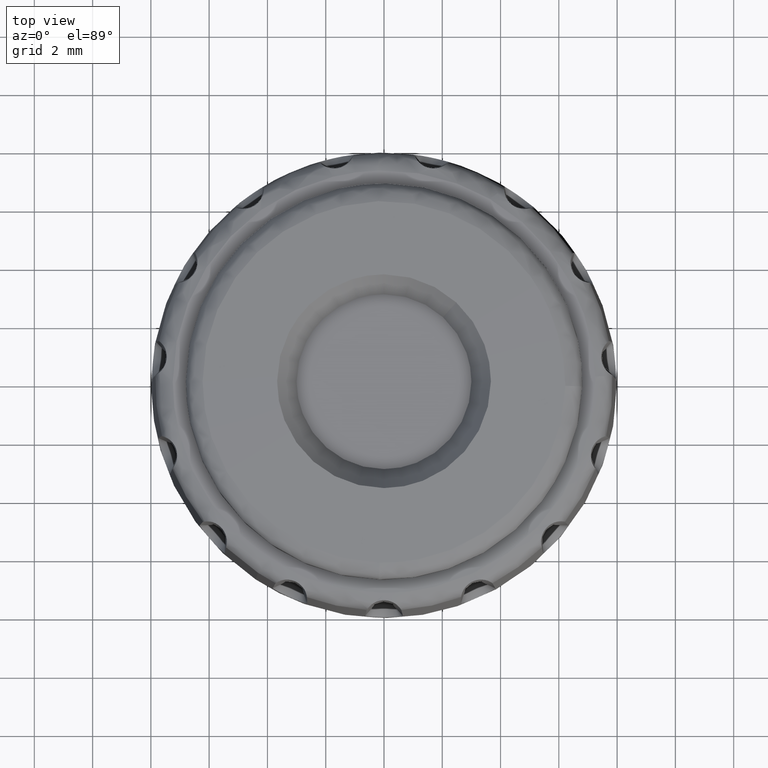
[diagram: clean part render]
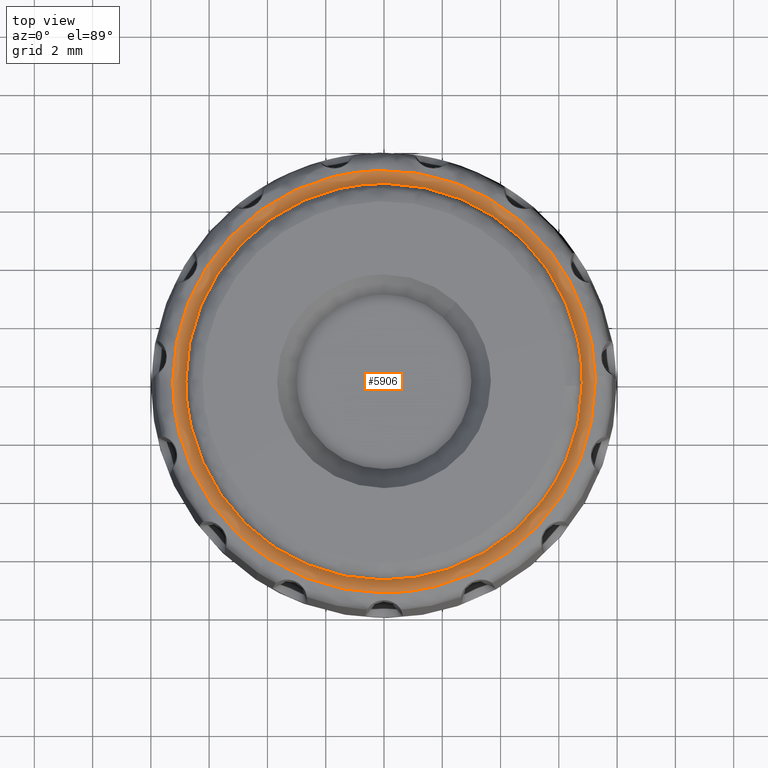
[diagram: same view with one face highlighted and labeled with its STEP entity id]
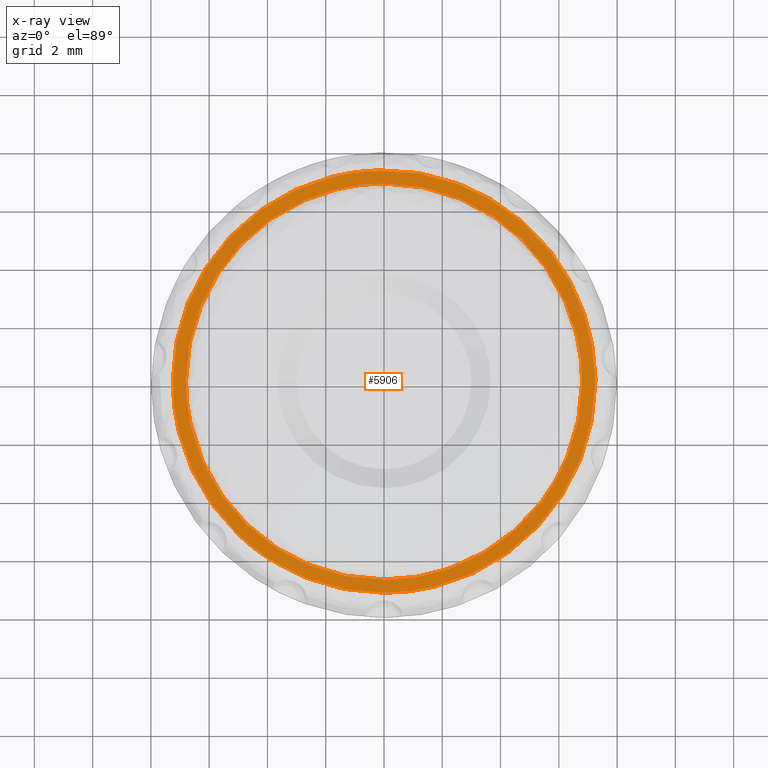
[diagram: x-ray of the same camera — body ghosted, the highlighted face saturated]
A machine part, top view. The second image highlights one B-rep face of the part: STEP entity #5906.
The next image is the same camera in x-ray: the body ghosted, the highlighted face saturated — about 0% of this face is hidden behind the body in this view.
In plain terms, the highlighted face is a freeform B-spline surface patch.
Its self-contained STEP definition (entity closure, byte-faithful):
#1542=CARTESIAN_POINT('',(5.408528519782236,-4.121626578270181,9.999999999999975));
#1543=VERTEX_POINT('',#1542);
#1544=CARTESIAN_POINT('',(0.0,-6.799999000000001,10.0));
#1545=VERTEX_POINT('',#1544);
#1546=CARTESIAN_POINT('',(5.408528519782236,-4.121626578270181,9.999999999999975));
#1547=CARTESIAN_POINT('',(5.191394152069469,-4.406600639848241,10.0));
#1548=CARTESIAN_POINT('',(4.799091260927516,-4.844717917109541,9.999999999999966));
#1549=CARTESIAN_POINT('',(4.107382140978954,-5.440801214764647,10.000000000000011));
#1550=CARTESIAN_POINT('',(3.347207764043351,-5.948837912936199,9.999999999999941));
#1551=CARTESIAN_POINT('',(2.400521007442862,-6.392517585190369,10.000000000000050));
#1552=CARTESIAN_POINT('',(1.270207693761692,-6.717783088369838,9.999999999999981));
#1553=CARTESIAN_POINT('',(0.455981786439983,-6.800060579972691,10.0));
#1554=CARTESIAN_POINT('',(0.0,-6.799999000000001,10.0));
#1555=B_SPLINE_CURVE_WITH_KNOTS('',3,(#1546,#1547,#1548,#1549,#1550,#1551,#1552,#1553,#1554),.UNSPECIFIED.,.F.,.U.,(4,1,1,1,1,1,4),(5.031966E-010,1.074807785380642,1.758779342067925,2.735879121498199,3.810685510656772,4.885497012482798,6.253435341333002),.UNSPECIFIED.);
#1556=EDGE_CURVE('',#1543,#1545,#1555,.T.);
#1614=CARTESIAN_POINT('',(-4.896453895723523,4.718551223315789,9.999999999999311));
#1615=VERTEX_POINT('',#1614);
#1621=CARTESIAN_POINT('',(-6.799999000000001,0.0,10.0));
#1622=VERTEX_POINT('',#1621);
#1623=CARTESIAN_POINT('',(-6.799999000000001,0.0,10.0));
#1624=CARTESIAN_POINT('',(-6.800027843671009,0.366674919784092,9.999999999999938));
#1625=CARTESIAN_POINT('',(-6.753743985027811,0.937044930050643,9.999999999999874));
#1626=CARTESIAN_POINT('',(-6.566821182870814,1.828469767579856,9.999999999999716));
#1627=CARTESIAN_POINT('',(-6.295999049394270,2.628211422897576,9.999999999999675));
#1628=CARTESIAN_POINT('',(-5.921968999995835,3.369393497246997,9.999999999999480));
#1629=CARTESIAN_POINT('',(-5.470931746341084,4.065122809471920,9.999999999999428));
#1630=CARTESIAN_POINT('',(-5.132058925873352,4.474093812627084,9.999999999999339));
#1631=CARTESIAN_POINT('',(-4.896453895723523,4.718551223315789,9.999999999999311));
#1632=B_SPLINE_CURVE_WITH_KNOTS('',3,(#1623,#1624,#1625,#1626,#1627,#1628,#1629,#1630,#1631),.UNSPECIFIED.,.F.,.U.,(4,1,1,1,1,1,4),(1.898949E-009,1.100019764477620,1.711143771647405,2.729676220179082,3.625992139615347,4.196374606216313,5.214911163169569),.UNSPECIFIED.);
#1633=EDGE_CURVE('',#1622,#1615,#1632,.T.);
#1635=CARTESIAN_POINT('',(0.0,-6.799999000000001,10.0));
#1636=CARTESIAN_POINT('',(-0.208618888932995,-6.799998457981279,9.999999999999993));
#1637=CARTESIAN_POINT('',(-0.764944718493808,-6.774395344932870,10.000000000000011));
#1638=CARTESIAN_POINT('',(-1.521242070272086,-6.645556763004307,9.999999999999970));
#1639=CARTESIAN_POINT('',(-2.401401887871068,-6.381505290715326,10.000000000000060));
#1640=CARTESIAN_POINT('',(-3.179479924337993,-6.036611995753584,9.999999999999936));
#1641=CARTESIAN_POINT('',(-4.054015885141657,-5.490311899850100,9.999999999999965));
#1642=CARTESIAN_POINT('',(-4.829719363281610,-4.829462317867765,10.000000000000041));
#1643=CARTESIAN_POINT('',(-5.469663976551860,-4.073598465305128,9.999999999999966));
#1644=CARTESIAN_POINT('',(-5.891005894762039,-3.417139282598224,10.000000000000041));
#1645=CARTESIAN_POINT('',(-6.196882432641729,-2.823148287383583,9.999999999999776));
#1646=CARTESIAN_POINT('',(-6.431378806003726,-2.241954514138603,10.000000000000110));
#1647=CARTESIAN_POINT('',(-6.631238614010163,-1.560595040486762,9.999999999999947));
#1648=CARTESIAN_POINT('',(-6.766673034388317,-0.820573122906618,10.000000000000020));
#1649=CARTESIAN_POINT('',(-6.800006431066225,-0.278160188053825,9.999999999999993));
#1650=CARTESIAN_POINT('',(-6.799999000000001,0.0,10.0));
#1651=B_SPLINE_CURVE_WITH_KNOTS('',3,(#1635,#1636,#1637,#1638,#1639,#1640,#1641,#1642,#1643,#1644,#1645,#1646,#1647,#1648,#1649,#1650),.UNSPECIFIED.,.F.,.U.,(4,1,1,1,1,1,1,1,1,1,1,1,1,4),(5.906408E-009,0.625859113942498,1.668970813268054,2.294837567800945,3.379671753072743,4.214160441787874,5.382435624219519,6.425544507455987,7.176583586202654,7.719001755844993,8.428317434799538,9.054184286367267,9.846949161622868,10.681430207446260),.UNSPECIFIED.);
#1652=EDGE_CURVE('',#1545,#1622,#1651,.T.);
#1675=CARTESIAN_POINT('',(6.799999000000001,0.0,10.0));
#1676=VERTEX_POINT('',#1675);
#1677=CARTESIAN_POINT('',(6.799999000000001,0.0,10.0));
#1678=CARTESIAN_POINT('',(6.800004230439056,-0.288279976658944,10.0));
#1679=CARTESIAN_POINT('',(6.758158740773751,-0.945563018841939,10.000000000000011));
#1680=CARTESIAN_POINT('',(6.568903112478424,-1.839737565057945,9.999999999999968));
#1681=CARTESIAN_POINT('',(6.255595982703328,-2.708944042114950,9.999999999999968));
#1682=CARTESIAN_POINT('',(5.885439892142655,-3.441212454023802,10.000000000000030));
#1683=CARTESIAN_POINT('',(5.569287289294841,-3.910682880211174,9.999999999999936));
#1684=CARTESIAN_POINT('',(5.408528519782236,-4.121626578270181,9.999999999999975));
#1685=B_SPLINE_CURVE_WITH_KNOTS('',3,(#1677,#1678,#1679,#1680,#1681,#1682,#1683,#1684),.UNSPECIFIED.,.F.,.U.,(4,1,1,1,1,4),(1.669694E-009,0.864842253420774,1.971842799012761,2.732902083904587,3.632341341373329,4.427996334195600),.UNSPECIFIED.);
#1686=EDGE_CURVE('',#1676,#1543,#1685,.T.);
#1688=CARTESIAN_POINT('',(0.0,6.799999000000001,10.0));
#1689=VERTEX_POINT('',#1688);
#1690=CARTESIAN_POINT('',(0.0,6.799999000000001,10.0));
#1691=CARTESIAN_POINT('',(0.361611806379509,6.800026728274434,9.999999999999977));
#1692=CARTESIAN_POINT('',(0.959649348213776,6.752172765310553,10.000000000000030));
#1693=CARTESIAN_POINT('',(1.871934471881222,6.556124549244331,9.999999999999952));
#1694=CARTESIAN_POINT('',(2.674645604036409,6.274457300479724,10.000000000000149));
#1695=CARTESIAN_POINT('',(3.468742457353139,5.868607875179951,9.999999999999778));
#1696=CARTESIAN_POINT('',(4.103341227713555,5.438917722025872,10.000000000000250));
#1697=CARTESIAN_POINT('',(4.677132636875631,4.953104350139104,9.999999999999659));
#1698=CARTESIAN_POINT('',(5.130086170467482,4.480259747781740,10.000000000000030));
#1699=CARTESIAN_POINT('',(5.559939086443254,3.932920295681527,10.000000000000080));
#1700=CARTESIAN_POINT('',(5.996370001781465,3.253040355066616,10.000000000000130));
#1701=CARTESIAN_POINT('',(6.388359842649924,2.404128383169410,9.999999999999963));
#1702=CARTESIAN_POINT('',(6.636815894572605,1.547271076273085,10.000000000000030));
#1703=CARTESIAN_POINT('',(6.770086322324401,0.764939960136304,10.000000000000011));
#1704=CARTESIAN_POINT('',(6.800007522178547,0.278160297153615,9.999999999999996));
#1705=CARTESIAN_POINT('',(6.799999000000001,0.0,10.0));
#1706=B_SPLINE_CURVE_WITH_KNOTS('',3,(#1690,#1691,#1692,#1693,#1694,#1695,#1696,#1697,#1698,#1699,#1700,#1701,#1702,#1703,#1704,#1705),.UNSPECIFIED.,.F.,.U.,(4,1,1,1,1,1,1,1,1,1,1,1,1,4),(5.904127E-009,1.084831325827979,1.794144399425338,2.795531052823528,3.630018287854757,4.464505047826655,5.090374036826306,5.883127610205257,6.425544507455590,7.176583586202448,8.303143432670098,9.221081452806370,9.846949161622874,10.681430207446260),.UNSPECIFIED.);
#1707=EDGE_CURVE('',#1689,#1676,#1706,.T.);
#1709=CARTESIAN_POINT('',(-4.896453895723523,4.718551223315789,9.999999999999311));
#1710=CARTESIAN_POINT('',(-4.580390488678766,5.046617302975597,9.999999999999352));
#1711=CARTESIAN_POINT('',(-3.991102408665842,5.546282865874094,9.999999999999428));
#1712=CARTESIAN_POINT('',(-3.082058949107592,6.083585599091468,9.999999999999599));
#1713=CARTESIAN_POINT('',(-2.320692116641721,6.407228623081519,9.999999999999625));
#1714=CARTESIAN_POINT('',(-1.541902424202456,6.638701302637523,9.999999999999826));
#1715=CARTESIAN_POINT('',(-0.782964199950261,6.771099446613853,9.999999999999840));
#1716=CARTESIAN_POINT('',(-0.242006078123439,6.800001919436407,10.000000000000011));
#1717=CARTESIAN_POINT('',(0.0,6.799999000000001,10.0));
#1718=B_SPLINE_CURVE_WITH_KNOTS('',3,(#1709,#1710,#1711,#1712,#1713,#1714,#1715,#1716,#1717),.UNSPECIFIED.,.F.,.U.,(4,1,1,1,1,1,4),(1.912579E-009,1.366629769475720,2.306190684347369,3.160328389730370,3.843645440179791,4.740498999005044,5.466519072165273),.UNSPECIFIED.);
#1719=EDGE_CURVE('',#1615,#1689,#1718,.T.);
#3828=CARTESIAN_POINT('',(-0.182171356558874,7.246841755596723,9.999993999997795));
#3829=VERTEX_POINT('',#3828);
#3830=CARTESIAN_POINT('',(7.246840678469663,0.182171329570759,9.999993999999788));
#3831=VERTEX_POINT('',#3830);
#3832=CARTESIAN_POINT('',(-0.182171356558874,7.246841755596723,9.999993999997795));
#3833=CARTESIAN_POINT('',(0.188378583600182,7.256180020488944,9.999993999997857));
#3834=CARTESIAN_POINT('',(0.841799561863341,7.222413446355628,9.999993999997912));
#3835=CARTESIAN_POINT('',(1.877997814429047,7.026853828803988,9.999993999998138));
#3836=CARTESIAN_POINT('',(2.765410651451269,6.725183426959933,9.999993999998269));
#3837=CARTESIAN_POINT('',(3.695432654358968,6.261300976334425,9.999993999998409));
#3838=CARTESIAN_POINT('',(4.410060819695639,5.778054878730777,9.999993999998683));
#3839=CARTESIAN_POINT('',(5.034714623937862,5.229730104799012,9.999993999998775));
#3840=CARTESIAN_POINT('',(5.565522348150299,4.669444155468002,9.999993999998941));
#3841=CARTESIAN_POINT('',(6.155096111472352,3.885629202915855,9.999993999999189));
#3842=CARTESIAN_POINT('',(6.671948806082709,2.912888357903933,9.999993999999399));
#3843=CARTESIAN_POINT('',(6.998341628333837,1.956304236358145,9.999993999999488));
#3844=CARTESIAN_POINT('',(7.186401307049295,1.070528602677750,9.999993999999674));
#3845=CARTESIAN_POINT('',(7.238657162296287,0.508254771762726,9.999993999999669));
#3846=CARTESIAN_POINT('',(7.246840678469663,0.182171329570759,9.999993999999788));
#3847=B_SPLINE_CURVE_WITH_KNOTS('',3,(#3832,#3833,#3834,#3835,#3836,#3837,#3838,#3839,#3840,#3841,#3842,#3843,#3844,#3845,#3846),.UNSPECIFIED.,.F.,.U.,(4,1,1,1,1,1,1,1,1,1,1,1,4),(5.309960E-009,1.112000627429053,1.957125947492170,3.158093508767299,3.914259074909267,5.070747010444218,5.737939956046518,6.405140958916529,7.383705979024388,8.673635219804861,9.696682580834516,10.408367556582110,11.386925705064151),.UNSPECIFIED.);
#3848=EDGE_CURVE('',#3829,#3831,#3847,.T.);
#4115=CARTESIAN_POINT('',(-7.249130031415930,0.0,9.999993999999790));
#4116=VERTEX_POINT('',#4115);
#4117=CARTESIAN_POINT('',(-7.249130031415930,0.0,9.999993999999790));
#4118=CARTESIAN_POINT('',(-7.249157824204534,0.393916509792342,9.999993999999735));
#4119=CARTESIAN_POINT('',(-7.185951367522921,1.167150913651906,9.999993999999605));
#4120=CARTESIAN_POINT('',(-6.961952901771083,2.076574368813614,9.999993999999498));
#4121=CARTESIAN_POINT('',(-6.674117515168679,2.857266197954449,9.999993999999207));
#4122=CARTESIAN_POINT('',(-6.389932796279209,3.450426347224270,9.999993999999314));
#4123=CARTESIAN_POINT('',(-5.985777795039916,4.110453907914095,9.999993999998951));
#4124=CARTESIAN_POINT('',(-5.552966589527826,4.680903204576962,9.999993999998974));
#4125=CARTESIAN_POINT('',(-4.982591617255896,5.287405751000613,9.999993999998786));
#4126=CARTESIAN_POINT('',(-4.401730688845052,5.778007536274684,9.999993999998541));
#4127=CARTESIAN_POINT('',(-3.723454390235343,6.234787902963229,9.999993999998461));
#4128=CARTESIAN_POINT('',(-3.130238529745147,6.551231483221776,9.999993999998283));
#4129=CARTESIAN_POINT('',(-2.375153090779928,6.864656109800507,9.999993999998168));
#4130=CARTESIAN_POINT('',(-1.434562945868238,7.139992873661338,9.999993999997932));
#4131=CARTESIAN_POINT('',(-0.634305245401483,7.235524747334561,9.999993999997956));
#4132=CARTESIAN_POINT('',(-0.182171356558874,7.246841755596723,9.999993999997795));
#4133=B_SPLINE_CURVE_WITH_KNOTS('',3,(#4117,#4118,#4119,#4120,#4121,#4122,#4123,#4124,#4125,#4126,#4127,#4128,#4129,#4130,#4131,#4132),.UNSPECIFIED.,.F.,.U.,(4,1,1,1,1,1,1,1,1,1,1,1,1,4),(5.711868E-009,1.181746986951964,2.319728784766681,2.801183543278439,3.676555101532285,4.289314904498957,5.120919710671733,5.821202068520567,6.784111249639482,7.396872023621127,8.272244621041335,8.797468094547211,9.847912422276751,11.204734013540930),.UNSPECIFIED.);
#4134=EDGE_CURVE('',#4116,#3829,#4133,.T.);
#4704=CARTESIAN_POINT('',(7.249130031415930,0.0,9.999993999999790));
#4705=VERTEX_POINT('',#4704);
#4706=CARTESIAN_POINT('',(7.246840678469663,0.182171329570759,9.999993999999788));
#4707=CARTESIAN_POINT('',(7.249130031415930,0.0,9.999993999999790));
#4708=QUASI_UNIFORM_CURVE('',1,(#4706,#4707),.UNSPECIFIED.,.F.,.U.);
#4709=EDGE_CURVE('',#3831,#4705,#4708,.T.);
#4711=CARTESIAN_POINT('',(0.0,-7.249130031415930,9.999993999999790));
#4712=VERTEX_POINT('',#4711);
#4713=CARTESIAN_POINT('',(7.249130031415930,0.0,9.999993999999790));
#4714=CARTESIAN_POINT('',(7.249180247711667,-0.459632250313401,9.999993999999829));
#4715=CARTESIAN_POINT('',(7.184042402278967,-1.141638410557177,9.999993999999774));
#4716=CARTESIAN_POINT('',(6.958227028514886,-2.079599417203276,9.999993999999772));
#4717=CARTESIAN_POINT('',(6.675488898837070,-2.877548530166551,9.999993999999862));
#4718=CARTESIAN_POINT('',(6.278801122975992,-3.659655366125795,9.999993999999786));
#4719=CARTESIAN_POINT('',(5.814750831694097,-4.349532999388248,9.999993999999795));
#4720=CARTESIAN_POINT('',(5.283458287605479,-4.988890917806744,9.999993999999790));
#4721=CARTESIAN_POINT('',(4.668071663331951,-5.571203099656070,9.999993999999797));
#4722=CARTESIAN_POINT('',(3.853356232967927,-6.167732739099501,9.999993999999790));
#4723=CARTESIAN_POINT('',(2.988808227974964,-6.633273981631616,9.999993999999781));
#4724=CARTESIAN_POINT('',(2.094483606922929,-6.956330689885133,9.999993999999818));
#4725=CARTESIAN_POINT('',(1.126810806309044,-7.186144181304123,9.999993999999749));
#4726=CARTESIAN_POINT('',(0.444804083939576,-7.249184614335935,9.999993999999891));
#4727=CARTESIAN_POINT('',(0.0,-7.249130031415930,9.999993999999790));
#4728=B_SPLINE_CURVE_WITH_KNOTS('',3,(#4713,#4714,#4715,#4716,#4717,#4718,#4719,#4720,#4721,#4722,#4723,#4724,#4725,#4726,#4727),.UNSPECIFIED.,.F.,.U.,(4,1,1,1,1,1,1,1,1,1,1,1,4),(5.279750E-009,1.378885076742790,2.046087896918506,2.891211562201029,3.914258725462759,4.670423929520510,5.382107438464584,6.405140387249984,7.205787987257399,8.406752589596337,9.340839164578197,10.052524183403230,11.386924688558270),.UNSPECIFIED.);
#4729=EDGE_CURVE('',#4705,#4712,#4728,.T.);
#4731=CARTESIAN_POINT('',(0.0,-7.249130031415930,9.999993999999790));
#4732=CARTESIAN_POINT('',(-0.296532359310504,-7.249138264714218,9.999993999999779));
#4733=CARTESIAN_POINT('',(-0.889597277937976,-7.212689425296788,9.999993999999809));
#4734=CARTESIAN_POINT('',(-1.838842351507520,-7.035975963911839,9.999993999999784));
#4735=CARTESIAN_POINT('',(-2.685167021332863,-6.753498503374257,9.999993999999756));
#4736=CARTESIAN_POINT('',(-3.515835675990098,-6.357491135310853,9.999993999999839));
#4737=CARTESIAN_POINT('',(-4.272051760109006,-5.885109436038597,9.999993999999745));
#4738=CARTESIAN_POINT('',(-4.956194289832745,-5.313020936204347,9.999993999999774));
#4739=CARTESIAN_POINT('',(-5.527464872348614,-4.709283406335779,9.999993999999822));
#4740=CARTESIAN_POINT('',(-5.971590369252492,-4.132938065330500,9.999993999999774));
#4741=CARTESIAN_POINT('',(-6.399895389714920,-3.437846246992967,9.999993999999800));
#4742=CARTESIAN_POINT('',(-6.778579777924536,-2.630822946948414,9.999993999999777));
#4743=CARTESIAN_POINT('',(-7.045298000179718,-1.779818952982238,9.999993999999798));
#4744=CARTESIAN_POINT('',(-7.211034164154047,-0.889595625162175,9.999993999999806));
#4745=CARTESIAN_POINT('',(-7.249143781982866,-0.326186107156827,9.999993999999751));
#4746=CARTESIAN_POINT('',(-7.249130031415930,0.0,9.999993999999790));
#4747=B_SPLINE_CURVE_WITH_KNOTS('',3,(#4731,#4732,#4733,#4734,#4735,#4736,#4737,#4738,#4739,#4740,#4741,#4742,#4743,#4744,#4745,#4746),.UNSPECIFIED.,.F.,.U.,(4,1,1,1,1,1,1,1,1,1,1,1,1,4),(5.277341E-009,0.889597648306994,1.779204546398036,2.891211562200049,3.558416225958857,4.536980858333950,5.560028471172747,6.227218524680731,7.027862851719999,7.739547870545026,8.673634445526885,9.696681715226456,10.408366627435599,11.386924688558279),.UNSPECIFIED.);
#4748=EDGE_CURVE('',#4712,#4116,#4747,.T.);
#5886=CARTESIAN_POINT('',(-7.973318365652524,-7.973204066236828,9.999997000000001));
#5887=CARTESIAN_POINT('',(7.973318495277070,-7.973204066236828,9.999997000000001));
#5888=CARTESIAN_POINT('',(-7.973318365652524,7.970915920021708,9.999997000000001));
#5889=CARTESIAN_POINT('',(7.973318495277070,7.970915920021708,9.999997000000001));
#5890=B_SPLINE_SURFACE_WITH_KNOTS('',1,1,((#5886,#5888),(#5887,#5889)),.UNSPECIFIED.,.F.,.F.,.U.,(2,2),(2,2),(0.0,15.946636860929591),(0.0,15.944119986258540),.UNSPECIFIED.);
#5891=ORIENTED_EDGE('',*,*,#4748,.F.);
#5892=ORIENTED_EDGE('',*,*,#4729,.F.);
#5893=ORIENTED_EDGE('',*,*,#4709,.F.);
#5894=ORIENTED_EDGE('',*,*,#3848,.F.);
#5895=ORIENTED_EDGE('',*,*,#4134,.F.);
#5896=EDGE_LOOP('',(#5891,#5892,#5893,#5894,#5895));
#5897=FACE_OUTER_BOUND('',#5896,.T.);
#5898=ORIENTED_EDGE('',*,*,#1707,.T.);
#5899=ORIENTED_EDGE('',*,*,#1686,.T.);
#5900=ORIENTED_EDGE('',*,*,#1556,.T.);
#5901=ORIENTED_EDGE('',*,*,#1652,.T.);
#5902=ORIENTED_EDGE('',*,*,#1633,.T.);
#5903=ORIENTED_EDGE('',*,*,#1719,.T.);
#5904=EDGE_LOOP('',(#5898,#5899,#5900,#5901,#5902,#5903));
#5905=FACE_BOUND('',#5904,.T.);
#5906=ADVANCED_FACE('',(#5897,#5905),#5890,.T.);